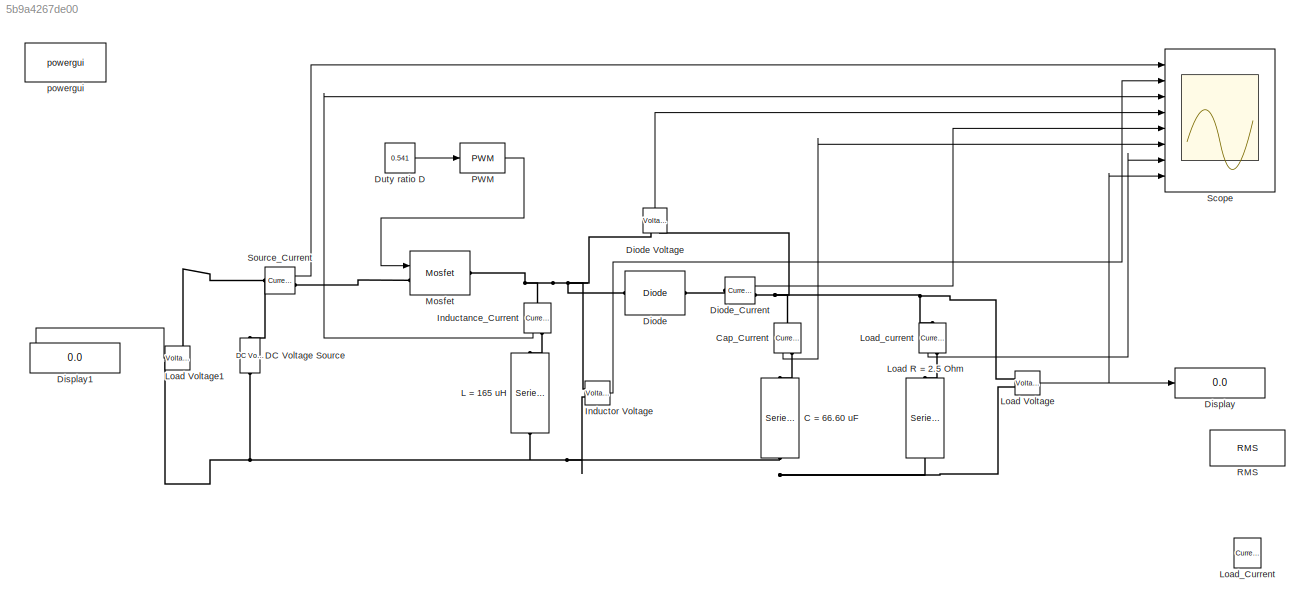
MODEL slx_5b9a4267de00
KIND model
CONFIG AbsTol = auto
CONFIG EnableMultiTasking = off
CONFIG FixedStep = auto
CONFIG MaxStep = auto
CONFIG MinStep = auto
CONFIG RelTol = 1e-3
CONFIG SampleTimeConstraint = Unconstrained
CONFIG SolverName = VariableStepAuto
CONFIG StartTime = 0.0
CONFIG StopTime = 1
BLOCK [Reference] C = 66.60 uF  REF=spsSeriesRLCBranchLib/Series RLC Branch
  NameLocation = left
  Ports = [0, 0, 0, 0, 0, 1, 1]
  SourceBlock = spsSeriesRLCBranchLib/Series RLC Branch
  SourceProductBaseCode = PS
  SourceType = Series RLC Branch
BLOCK [Reference] Cap_Current  REF=spsCurrentMeasurementLib/Current Measurement
  NameLocation = left
  Ports = [0, 1, 0, 0, 0, 1, 1]
  SourceBlock = spsCurrentMeasurementLib/Current Measurement
  SourceProductBaseCode = PS
  SourceType = Current Measurement
  UserDataPersistent = on
BLOCK [Reference] DC Voltage Source  REF=spsDCVoltageSourceLib/DC Voltage Source
  Ports = [0, 0, 0, 0, 0, 1, 1]
  SourceBlock = spsDCVoltageSourceLib/DC Voltage Source
  SourceProductBaseCode = PS
  SourceType = DC Voltage Source
BLOCK [Reference] Diode  REF=spsDiodeLib/Diode
  NameLocation = top
  Ports = [0, 0, 0, 0, 0, 1, 1]
  SourceBlock = spsDiodeLib/Diode
  SourceProductBaseCode = PS
  SourceType = Diode
BLOCK [Reference] Diode Voltage  REF=spsVoltageMeasurementLib/Voltage Measurement
  NameLocation = right
  Ports = [0, 1, 0, 0, 0, 2]
  SourceBlock = spsVoltageMeasurementLib/Voltage Measurement
  SourceProductBaseCode = PS
  SourceType = Voltage Measurement
  UserDataPersistent = on
BLOCK [Reference] Diode_Current  REF=spsCurrentMeasurementLib/Current Measurement
  Ports = [0, 1, 0, 0, 0, 1, 1]
  SourceBlock = spsCurrentMeasurementLib/Current Measurement
  SourceProductBaseCode = PS
  SourceType = Current Measurement
  UserDataPersistent = on
BLOCK [Display] Display
  Decimation = 1
  Ports = [1]
BLOCK [Display] Display1
  Decimation = 1
  Ports = [1]
BLOCK [Constant] Duty ratio D
  Value = 0.541
BLOCK [Reference] Inductance_Current  REF=spsCurrentMeasurementLib/Current Measurement
  NameLocation = left
  Ports = [0, 1, 0, 0, 0, 1, 1]
  SourceBlock = spsCurrentMeasurementLib/Current Measurement
  SourceProductBaseCode = PS
  SourceType = Current Measurement
  UserDataPersistent = on
BLOCK [Reference] Inductor Voltage  REF=spsVoltageMeasurementLib/Voltage Measurement
  Ports = [0, 1, 0, 0, 0, 2]
  SourceBlock = spsVoltageMeasurementLib/Voltage Measurement
  SourceProductBaseCode = PS
  SourceType = Voltage Measurement
  UserDataPersistent = on
BLOCK [Reference] L = 165 uH  REF=spsSeriesRLCBranchLib/Series RLC Branch
  NameLocation = left
  Ports = [0, 0, 0, 0, 0, 1, 1]
  SourceBlock = spsSeriesRLCBranchLib/Series RLC Branch
  SourceProductBaseCode = PS
  SourceType = Series RLC Branch
BLOCK [Reference] Load R = 2.5 Ohm  REF=spsSeriesRLCBranchLib/Series RLC Branch
  NameLocation = left
  Ports = [0, 0, 0, 0, 0, 1, 1]
  SourceBlock = spsSeriesRLCBranchLib/Series RLC Branch
  SourceProductBaseCode = PS
  SourceType = Series RLC Branch
BLOCK [Reference] Load Voltage  REF=spsVoltageMeasurementLib/Voltage Measurement
  Ports = [0, 1, 0, 0, 0, 2]
  SourceBlock = spsVoltageMeasurementLib/Voltage Measurement
  SourceProductBaseCode = PS
  SourceType = Voltage Measurement
  UserDataPersistent = on
BLOCK [Reference] Load Voltage1  REF=spsVoltageMeasurementLib/Voltage Measurement
  NameLocation = top
  Ports = [0, 1, 0, 0, 0, 2]
  SourceBlock = spsVoltageMeasurementLib/Voltage Measurement
  SourceProductBaseCode = PS
  SourceType = Voltage Measurement
  UserDataPersistent = on
BLOCK [Reference] Load_Current  REF=spsCurrentMeasurementLib/Current Measurement
  NameLocation = left
  Ports = [0, 1, 0, 0, 0, 1, 1]
  SourceBlock = spsCurrentMeasurementLib/Current Measurement
  SourceProductBaseCode = PS
  SourceType = Current Measurement
  UserDataPersistent = on
BLOCK [Reference] Load_current  REF=spsCurrentMeasurementLib/Current Measurement
  NameLocation = left
  Ports = [0, 1, 0, 0, 0, 1, 1]
  SourceBlock = spsCurrentMeasurementLib/Current Measurement
  SourceProductBaseCode = PS
  SourceType = Current Measurement
  UserDataPersistent = on
BLOCK [Reference] Mosfet  REF=spsMosfetLib/Mosfet
  Ports = [1, 0, 0, 0, 0, 1, 1]
  SourceBlock = spsMosfetLib/Mosfet
  SourceProductBaseCode = PS
  SourceType = Mosfet
BLOCK [Reference] PWM  REF=simulink/Discontinuities/PWM
  DisableCoverage = on
  Ports = [1, 1]
  SourceBlock = simulink/Discontinuities/PWM
  SourceProductBaseCode = SL
  SourceType = PWM
BLOCK [Reference] RMS  REF=dspstat3/RMS
  Ports = [1, 1]
  SourceBlock = dspstat3/RMS
  SourceProductBaseCode = DS
  SourceType = RMS
  UserDataPersistent = on
BLOCK [Scope] Scope
  Floating = off
  NumInputPorts = 8
  Ports = [8]
  ScopeSpecificationString = Simulink.scopes.TimeScopeBlockCfg('CurrentConfiguration', extmgr.ConfigurationSet(extmgr.Configuration('Core','General UI',true),extmgr.Configuration('Core','Source UI',true),extmgr.Configuration('Sources','WiredSimulink',true,'DataLogging',true,'DataLoggingVariableName','Test','DataLoggingSaveFormat','StructureWithTime'),extmgr.Configuration('Visuals','Time Domain',true,'SerializedDisplays',{stru...<+2013ch>
BLOCK [Reference] Source_Current  REF=spsCurrentMeasurementLib/Current Measurement
  Ports = [0, 1, 0, 0, 0, 1, 1]
  SourceBlock = spsCurrentMeasurementLib/Current Measurement
  SourceProductBaseCode = PS
  SourceType = Current Measurement
  UserDataPersistent = on
BLOCK [Reference] powergui  REF=spspowerguiLib/powergui
  Ports = []
  Priority = 1
  SourceBlock = spspowerguiLib/powergui
  SourceProductBaseCode = PS
  SourceType = PSB option menu block
LINE Cap_Current:1 -> Scope:6
LINE Diode Voltage:1 -> Scope:4
LINE Diode_Current:1 -> Scope:5
LINE Duty ratio D:1 -> PWM:1
LINE Inductance_Current:1 -> Scope:3
LINE Inductor Voltage:1 -> Scope:2
LINE Load Voltage1:1 -> Display1:1
NET Load Voltage:1 -> Display:1, Scope:8
LINE Load_current:1 -> Scope:7
LINE PWM:1 -> Mosfet:1
LINE Source_Current:1 -> Scope:1
PLINE C = 66.60 uF:LConn1 -- Cap_Current:RConn1
PNET net1: C = 66.60 uF:RConn1 -- DC Voltage Source:LConn1 -- Inductor Voltage:LConn2 -- L = 165 uH:RConn1 -- Load R = 2.5 Ohm:RConn1 -- Load Voltage1:LConn2 -- Load Voltage:LConn2
PNET net2: Cap_Current:LConn1 -- Diode Voltage:LConn2 -- Diode_Current:RConn1 -- Load Voltage:LConn1 -- Load_current:LConn1
PNET net3: DC Voltage Source:RConn1 -- Load Voltage1:LConn1 -- Source_Current:LConn1
PNET net4: Diode Voltage:LConn1 -- Diode:RConn1 -- Inductance_Current:LConn1 -- Inductor Voltage:LConn1 -- Mosfet:RConn1
PLINE Diode:LConn1 -- Diode_Current:LConn1
PLINE Inductance_Current:RConn1 -- L = 165 uH:LConn1
PLINE Load R = 2.5 Ohm:LConn1 -- Load_current:RConn1
PLINE Mosfet:LConn1 -- Source_Current:RConn1
note: NET lines group one-source signal fan-out (src -> all destinations, sorted); 1:1 wires keep LINE; PNET lines group multi-terminal physical nets as a canonical sorted terminal list (undirected conserving connections); 2-terminal nets keep the pairwise PLINE form
